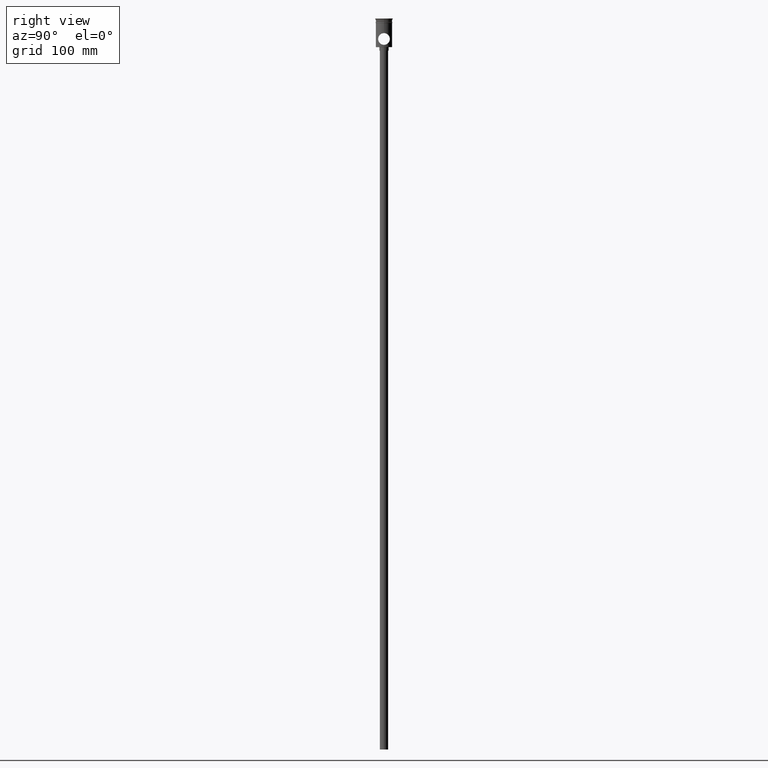
[diagram: clean part render]
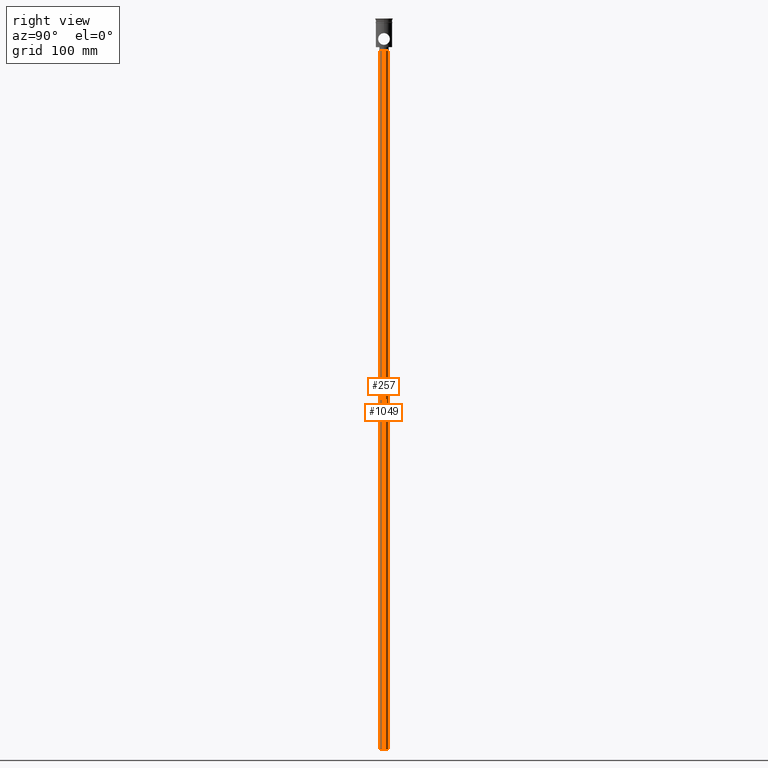
[diagram: same view with one multi-face feature highlighted, each face labeled with its STEP entity id]
A machine part, right view. The highlighted faces form ONE feature: a constant-radius fillet chain: 2 tangent blend faces with common blend radius 3.5 mm. The faces share edges in the B-rep.
Their STEP definitions:
[1] entity #1049 (Cylinder):
#13 = LINE ( 'NONE', #1414, #859 ) ;
#52 = CARTESIAN_POINT ( 'NONE',  ( 0.000000000000000000, 0.000000000000000000, -27.50000000000000000 ) ) ;
#109 = CARTESIAN_POINT ( 'NONE',  ( -3.500000000000000444, 4.286263797015737088E-16, -27.50000000000000000 ) ) ;
#110 = VERTEX_POINT ( 'NONE', #173 ) ;
#161 = VERTEX_POINT ( 'NONE', #494 ) ;
#170 = EDGE_CURVE ( 'NONE', #321, #161, #409, .T. ) ;
#173 = CARTESIAN_POINT ( 'NONE',  ( 3.500000000000000444, 0.000000000000000000, -624.5000000000000000 ) ) ;
#180 = ORIENTED_EDGE ( 'NONE', *, *, #1023, .T. ) ;
#187 = AXIS2_PLACEMENT_3D ( 'NONE', #52, #631, #1089 ) ;
#267 = FACE_OUTER_BOUND ( 'NONE', #1207, .T. ) ;
#274 = CARTESIAN_POINT ( 'NONE',  ( 0.000000000000000000, 0.000000000000000000, -624.5000000000000000 ) ) ;
#287 = VECTOR ( 'NONE', #537, 1000.000000000000000 ) ;
#321 = VERTEX_POINT ( 'NONE', #109 ) ;
#329 = LINE ( 'NONE', #1216, #287 ) ;
#397 = CARTESIAN_POINT ( 'NONE',  ( 0.000000000000000000, 0.000000000000000000, -624.5000000000000000 ) ) ;
#409 = CIRCLE ( 'NONE', #187, 3.500000000000000444 ) ;
#446 = CARTESIAN_POINT ( 'NONE',  ( -3.500000000000000444, 4.286263797015737088E-16, -624.5000000000000000 ) ) ;
#494 = CARTESIAN_POINT ( 'NONE',  ( 3.500000000000000444, 0.000000000000000000, -27.50000000000000000 ) ) ;
#537 = DIRECTION ( 'NONE',  ( -0.000000000000000000, -0.000000000000000000, 1.000000000000000000 ) ) ;
#628 = EDGE_CURVE ( 'NONE', #110, #161, #329, .T. ) ;
#631 = DIRECTION ( 'NONE',  ( 0.000000000000000000, 0.000000000000000000, -1.000000000000000000 ) ) ;
#670 = CIRCLE ( 'NONE', #1226, 3.500000000000000444 ) ;
#711 = ORIENTED_EDGE ( 'NONE', *, *, #628, .F. ) ;
#728 = DIRECTION ( 'NONE',  ( 0.000000000000000000, 0.000000000000000000, -1.000000000000000000 ) ) ;
#733 = ORIENTED_EDGE ( 'NONE', *, *, #1404, .F. ) ;
#793 = ORIENTED_EDGE ( 'NONE', *, *, #170, .T. ) ;
#849 = DIRECTION ( 'NONE',  ( -0.000000000000000000, -0.000000000000000000, 1.000000000000000000 ) ) ;
#859 = VECTOR ( 'NONE', #1080, 1000.000000000000000 ) ;
#916 = VERTEX_POINT ( 'NONE', #446 ) ;
#939 = DIRECTION ( 'NONE',  ( -1.000000000000000000, 0.000000000000000000, 0.000000000000000000 ) ) ;
#1006 = AXIS2_PLACEMENT_3D ( 'NONE', #397, #849, #1400 ) ;
#1023 = EDGE_CURVE ( 'NONE', #916, #321, #13, .T. ) ;
#1049 = ADVANCED_FACE ( 'NONE', ( #267 ), #1429, .T. ) ;
#1080 = DIRECTION ( 'NONE',  ( -0.000000000000000000, -0.000000000000000000, 1.000000000000000000 ) ) ;
#1089 = DIRECTION ( 'NONE',  ( -1.000000000000000000, 0.000000000000000000, 0.000000000000000000 ) ) ;
#1207 = EDGE_LOOP ( 'NONE', ( #733, #180, #793, #711 ) ) ;
#1216 = CARTESIAN_POINT ( 'NONE',  ( 3.500000000000000444, 0.000000000000000000, -624.5000000000000000 ) ) ;
#1226 = AXIS2_PLACEMENT_3D ( 'NONE', #274, #728, #939 ) ;
#1400 = DIRECTION ( 'NONE',  ( 1.000000000000000000, 0.000000000000000000, 0.000000000000000000 ) ) ;
#1404 = EDGE_CURVE ( 'NONE', #916, #110, #670, .T. ) ;
#1414 = CARTESIAN_POINT ( 'NONE',  ( -3.500000000000000444, 4.286263797015737088E-16, -624.5000000000000000 ) ) ;
#1429 = CYLINDRICAL_SURFACE ( 'NONE', #1006, 3.500000000000000444 ) ;
[2] entity #257 (Cylinder):
#13 = LINE ( 'NONE', #1414, #859 ) ;
#24 = DIRECTION ( 'NONE',  ( -1.000000000000000000, 0.000000000000000000, 0.000000000000000000 ) ) ;
#80 = DIRECTION ( 'NONE',  ( -0.000000000000000000, -0.000000000000000000, 1.000000000000000000 ) ) ;
#101 = FACE_OUTER_BOUND ( 'NONE', #320, .T. ) ;
#109 = CARTESIAN_POINT ( 'NONE',  ( -3.500000000000000444, 4.286263797015737088E-16, -27.50000000000000000 ) ) ;
#110 = VERTEX_POINT ( 'NONE', #173 ) ;
#161 = VERTEX_POINT ( 'NONE', #494 ) ;
#173 = CARTESIAN_POINT ( 'NONE',  ( 3.500000000000000444, 0.000000000000000000, -624.5000000000000000 ) ) ;
#199 = DIRECTION ( 'NONE',  ( 1.000000000000000000, 0.000000000000000000, 0.000000000000000000 ) ) ;
#225 = ORIENTED_EDGE ( 'NONE', *, *, #817, .F. ) ;
#257 = ADVANCED_FACE ( 'NONE', ( #101 ), #1111, .T. ) ;
#261 = AXIS2_PLACEMENT_3D ( 'NONE', #601, #1058, #24 ) ;
#287 = VECTOR ( 'NONE', #537, 1000.000000000000000 ) ;
#320 = EDGE_LOOP ( 'NONE', ( #655, #225, #1351, #1448 ) ) ;
#321 = VERTEX_POINT ( 'NONE', #109 ) ;
#329 = LINE ( 'NONE', #1216, #287 ) ;
#335 = AXIS2_PLACEMENT_3D ( 'NONE', #1367, #1187, #445 ) ;
#407 = CIRCLE ( 'NONE', #261, 3.500000000000000444 ) ;
#445 = DIRECTION ( 'NONE',  ( -1.000000000000000000, 0.000000000000000000, 0.000000000000000000 ) ) ;
#446 = CARTESIAN_POINT ( 'NONE',  ( -3.500000000000000444, 4.286263797015737088E-16, -624.5000000000000000 ) ) ;
#494 = CARTESIAN_POINT ( 'NONE',  ( 3.500000000000000444, 0.000000000000000000, -27.50000000000000000 ) ) ;
#537 = DIRECTION ( 'NONE',  ( -0.000000000000000000, -0.000000000000000000, 1.000000000000000000 ) ) ;
#601 = CARTESIAN_POINT ( 'NONE',  ( 0.000000000000000000, 0.000000000000000000, -27.50000000000000000 ) ) ;
#628 = EDGE_CURVE ( 'NONE', #110, #161, #329, .T. ) ;
#655 = ORIENTED_EDGE ( 'NONE', *, *, #1023, .F. ) ;
#718 = AXIS2_PLACEMENT_3D ( 'NONE', #1233, #80, #199 ) ;
#817 = EDGE_CURVE ( 'NONE', #110, #916, #1155, .T. ) ;
#859 = VECTOR ( 'NONE', #1080, 1000.000000000000000 ) ;
#916 = VERTEX_POINT ( 'NONE', #446 ) ;
#1023 = EDGE_CURVE ( 'NONE', #916, #321, #13, .T. ) ;
#1058 = DIRECTION ( 'NONE',  ( 0.000000000000000000, 0.000000000000000000, -1.000000000000000000 ) ) ;
#1067 = EDGE_CURVE ( 'NONE', #161, #321, #407, .T. ) ;
#1080 = DIRECTION ( 'NONE',  ( -0.000000000000000000, -0.000000000000000000, 1.000000000000000000 ) ) ;
#1111 = CYLINDRICAL_SURFACE ( 'NONE', #718, 3.500000000000000444 ) ;
#1155 = CIRCLE ( 'NONE', #335, 3.500000000000000444 ) ;
#1187 = DIRECTION ( 'NONE',  ( 0.000000000000000000, 0.000000000000000000, -1.000000000000000000 ) ) ;
#1216 = CARTESIAN_POINT ( 'NONE',  ( 3.500000000000000444, 0.000000000000000000, -624.5000000000000000 ) ) ;
#1233 = CARTESIAN_POINT ( 'NONE',  ( 0.000000000000000000, 0.000000000000000000, -624.5000000000000000 ) ) ;
#1351 = ORIENTED_EDGE ( 'NONE', *, *, #628, .T. ) ;
#1367 = CARTESIAN_POINT ( 'NONE',  ( 0.000000000000000000, 0.000000000000000000, -624.5000000000000000 ) ) ;
#1414 = CARTESIAN_POINT ( 'NONE',  ( -3.500000000000000444, 4.286263797015737088E-16, -624.5000000000000000 ) ) ;
#1448 = ORIENTED_EDGE ( 'NONE', *, *, #1067, .T. ) ;